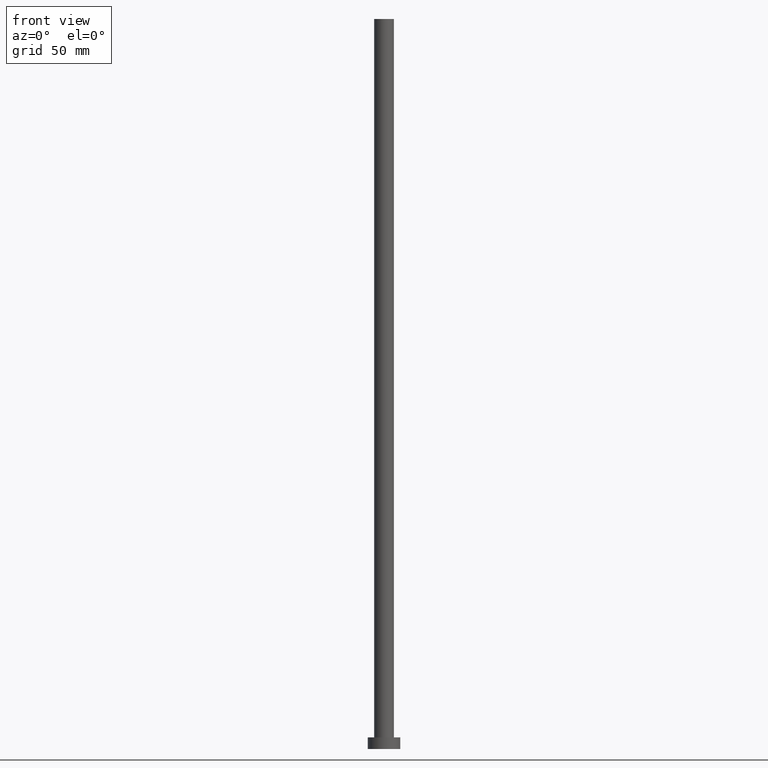
[diagram: clean part render]
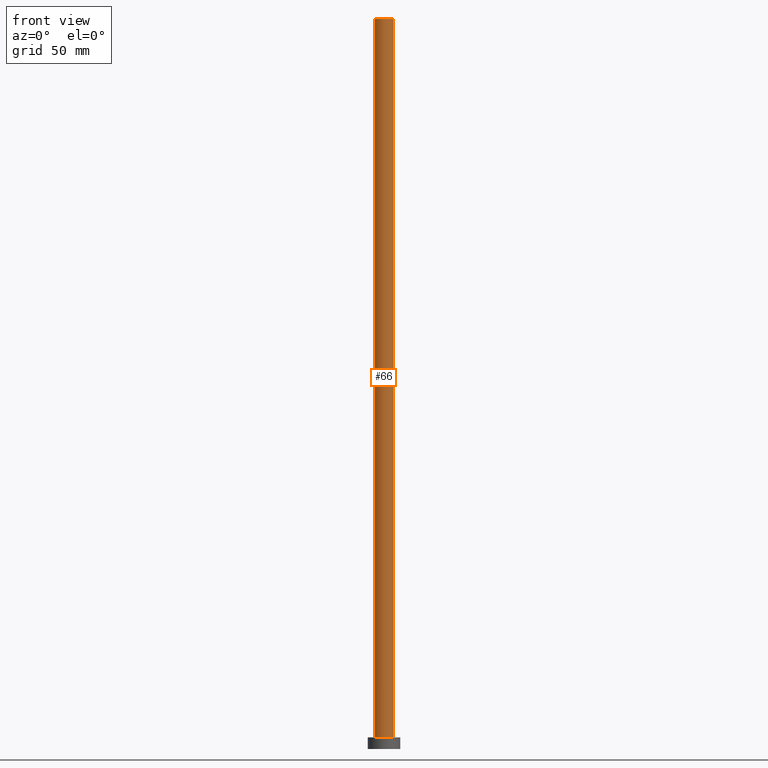
[diagram: same view with one face highlighted and labeled with its STEP entity id]
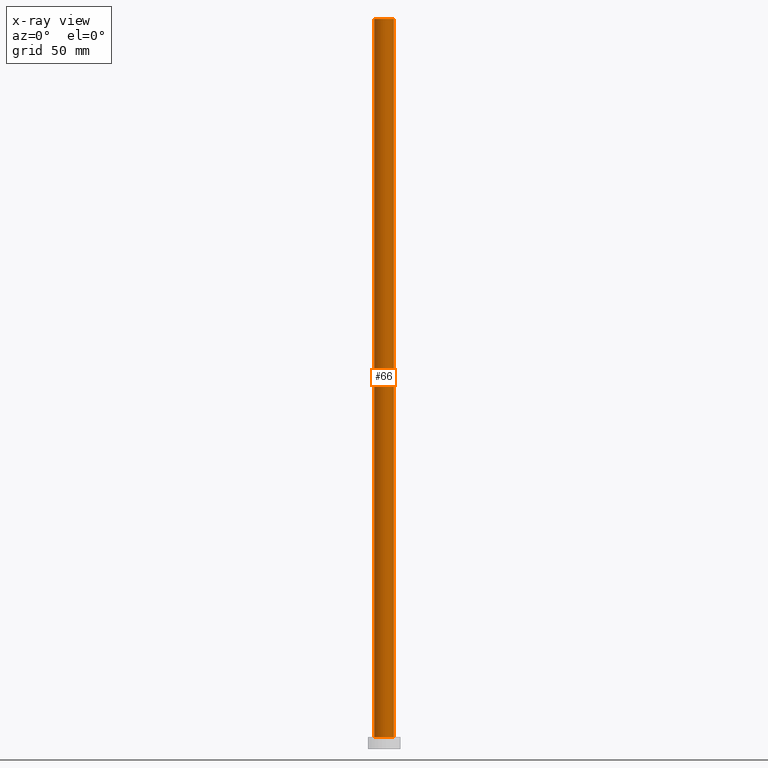
[diagram: x-ray of the same camera — body ghosted, the highlighted face saturated]
A machine part, front view. The second image highlights one B-rep face of the part: STEP entity #66.
The next image is the same camera in x-ray: the body ghosted, the highlighted face saturated — about 0% of this face is hidden behind the body in this view.
In plain terms, the highlighted cylindrical surface (edge-blend (fillet) strip) has radius 4.25 mm, axis along (-0, -0, -1).
Its self-contained STEP definition (entity closure, byte-faithful):
#3 = DIRECTION ( 'NONE',  ( -0.000000000000000000, -0.000000000000000000, -1.000000000000000000 ) ) ;
#7 = AXIS2_PLACEMENT_3D ( 'NONE', #229, #3, #55 ) ;
#10 = VERTEX_POINT ( 'NONE', #99 ) ;
#16 = VECTOR ( 'NONE', #236, 1000.000000000000000 ) ;
#25 = EDGE_CURVE ( 'NONE', #29, #108, #72, .T. ) ;
#29 = VERTEX_POINT ( 'NONE', #140 ) ;
#37 = ORIENTED_EDGE ( 'NONE', *, *, #51, .F. ) ;
#51 = EDGE_CURVE ( 'NONE', #108, #226, #169, .T. ) ;
#52 = ORIENTED_EDGE ( 'NONE', *, *, #249, .T. ) ;
#55 = DIRECTION ( 'NONE',  ( -1.000000000000000000, 0.000000000000000000, 0.000000000000000000 ) ) ;
#57 = ORIENTED_EDGE ( 'NONE', *, *, #164, .T. ) ;
#59 = DIRECTION ( 'NONE',  ( 1.000000000000000000, 0.000000000000000000, 0.000000000000000000 ) ) ;
#66 = ADVANCED_FACE ( 'NONE', ( #255 ), #151, .T. ) ;
#72 = CIRCLE ( 'NONE', #216, 4.250000000000000000 ) ;
#83 = CARTESIAN_POINT ( 'NONE',  ( 0.000000000000000000, 0.000000000000000000, 315.0000000000000000 ) ) ;
#99 = CARTESIAN_POINT ( 'NONE',  ( -4.250000000000000000, 0.000000000000000000, 5.000000000000000000 ) ) ;
#100 = EDGE_LOOP ( 'NONE', ( #37, #182, #52, #57 ) ) ;
#102 = CARTESIAN_POINT ( 'NONE',  ( 4.250000000000000000, 5.204748896376250699E-16, 315.0000000000000000 ) ) ;
#108 = VERTEX_POINT ( 'NONE', #163 ) ;
#111 = DIRECTION ( 'NONE',  ( 1.000000000000000000, 0.000000000000000000, 0.000000000000000000 ) ) ;
#117 = LINE ( 'NONE', #132, #16 ) ;
#120 = DIRECTION ( 'NONE',  ( -0.000000000000000000, -0.000000000000000000, -1.000000000000000000 ) ) ;
#125 = CIRCLE ( 'NONE', #242, 4.250000000000000000 ) ;
#132 = CARTESIAN_POINT ( 'NONE',  ( -4.250000000000000000, 0.000000000000000000, 315.0000000000000000 ) ) ;
#140 = CARTESIAN_POINT ( 'NONE',  ( -4.250000000000000000, 0.000000000000000000, 315.0000000000000000 ) ) ;
#144 = CARTESIAN_POINT ( 'NONE',  ( 0.000000000000000000, 0.000000000000000000, 5.000000000000000000 ) ) ;
#151 = CYLINDRICAL_SURFACE ( 'NONE', #7, 4.250000000000000000 ) ;
#163 = CARTESIAN_POINT ( 'NONE',  ( 4.250000000000000000, 5.204748896376250699E-16, 315.0000000000000000 ) ) ;
#164 = EDGE_CURVE ( 'NONE', #10, #226, #125, .T. ) ;
#169 = LINE ( 'NONE', #102, #218 ) ;
#182 = ORIENTED_EDGE ( 'NONE', *, *, #25, .F. ) ;
#189 = CARTESIAN_POINT ( 'NONE',  ( 4.250000000000000000, 5.204748896376250699E-16, 5.000000000000000000 ) ) ;
#213 = DIRECTION ( 'NONE',  ( 0.000000000000000000, 0.000000000000000000, 1.000000000000000000 ) ) ;
#216 = AXIS2_PLACEMENT_3D ( 'NONE', #83, #232, #59 ) ;
#218 = VECTOR ( 'NONE', #120, 1000.000000000000000 ) ;
#226 = VERTEX_POINT ( 'NONE', #189 ) ;
#229 = CARTESIAN_POINT ( 'NONE',  ( 0.000000000000000000, 0.000000000000000000, 315.0000000000000000 ) ) ;
#232 = DIRECTION ( 'NONE',  ( 0.000000000000000000, 0.000000000000000000, 1.000000000000000000 ) ) ;
#236 = DIRECTION ( 'NONE',  ( -0.000000000000000000, -0.000000000000000000, -1.000000000000000000 ) ) ;
#242 = AXIS2_PLACEMENT_3D ( 'NONE', #144, #213, #111 ) ;
#249 = EDGE_CURVE ( 'NONE', #29, #10, #117, .T. ) ;
#255 = FACE_OUTER_BOUND ( 'NONE', #100, .T. ) ;